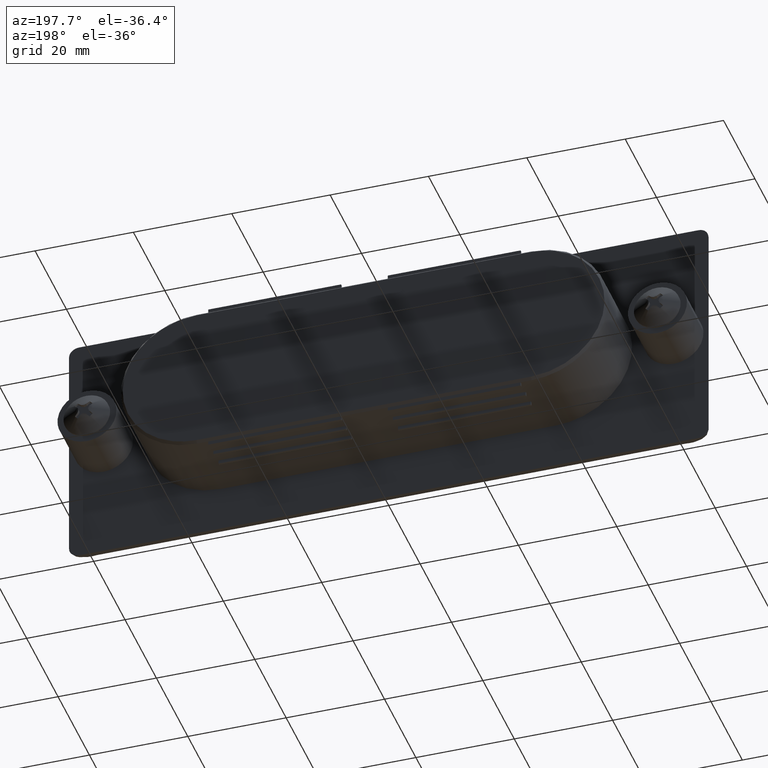
[diagram: clean part render]
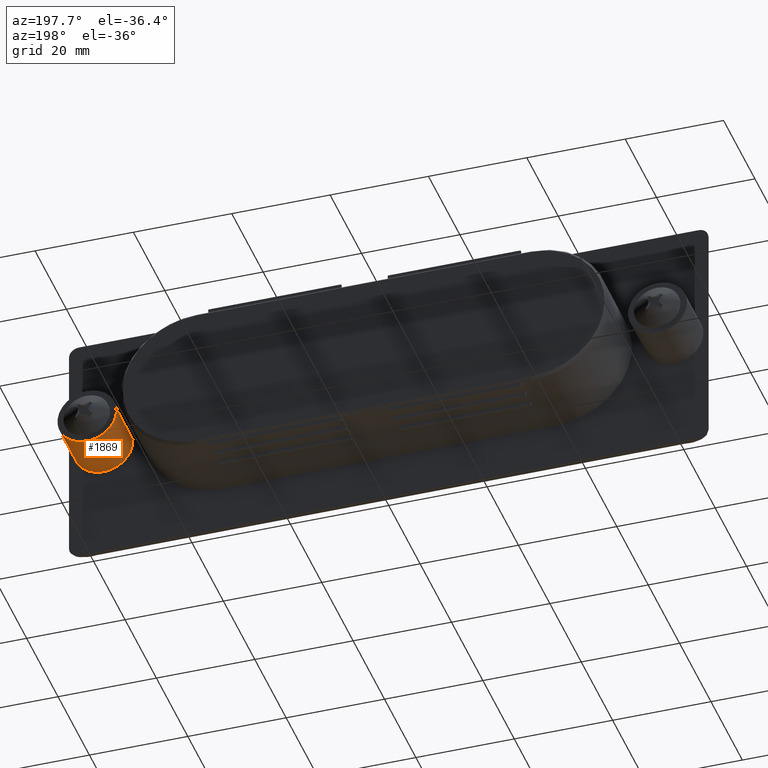
[diagram: same view with one face highlighted and labeled with its STEP entity id]
A machine part, auxiliary view. The second image highlights one B-rep face of the part: STEP entity #1869.
In plain terms, the highlighted face is a freeform B-spline surface patch.
Its self-contained STEP definition (entity closure, byte-faithful):
#1706=CARTESIAN_POINT('',(63.958057158140491,43.728926000000001,-0.708205408290503));
#1707=VERTEX_POINT('',#1706);
#1725=CARTESIAN_POINT('',(52.011191209492047,43.728926000000001,0.366291237590615));
#1726=VERTEX_POINT('',#1725);
#1740=CARTESIAN_POINT('',(52.011191209492040,33.228926000000001,0.366291237590613));
#1741=VERTEX_POINT('',#1740);
#1742=CARTESIAN_POINT('',(52.011191209492047,43.728926000000001,0.366291237590615));
#1743=CARTESIAN_POINT('',(52.011191209492040,33.228926000000001,0.366291237590613));
#1744=QUASI_UNIFORM_CURVE('',1,(#1742,#1743),.UNSPECIFIED.,.F.,.U.);
#1745=EDGE_CURVE('',#1726,#1741,#1744,.T.);
#1762=CARTESIAN_POINT('',(63.958057158140491,33.228926000000001,-0.708205408290503));
#1763=VERTEX_POINT('',#1762);
#1779=CARTESIAN_POINT('',(63.958057158140491,43.728926000000001,-0.708205408290503));
#1780=CARTESIAN_POINT('',(63.958057158140491,33.228926000000001,-0.708205408290503));
#1781=QUASI_UNIFORM_CURVE('',1,(#1779,#1780),.UNSPECIFIED.,.F.,.U.);
#1782=EDGE_CURVE('',#1707,#1763,#1781,.T.);
#1787=CARTESIAN_POINT('',(52.011191209468713,43.991426000000011,0.366291237209150));
#1788=CARTESIAN_POINT('',(51.644899972259566,43.991426000000011,-5.622517553322139));
#1789=CARTESIAN_POINT('',(57.633708762790853,43.991426000000011,-5.988808790531287));
#1790=CARTESIAN_POINT('',(63.289260945037086,43.991426000000004,-6.334717180395258));
#1791=CARTESIAN_POINT('',(63.958057158182086,43.991426000000018,-0.708205407940559));
#1792=CARTESIAN_POINT('',(52.011191209468713,32.959863499999997,0.366291237209150));
#1793=CARTESIAN_POINT('',(51.644899972259566,32.959863499999990,-5.622517553322139));
#1794=CARTESIAN_POINT('',(57.633708762790853,32.959863499999997,-5.988808790531287));
#1795=CARTESIAN_POINT('',(63.289260945037086,32.959863500000004,-6.334717180395258));
#1796=CARTESIAN_POINT('',(63.958057158182086,32.959863500000004,-0.708205407940559));
#1804=(BOUNDED_SURFACE()B_SPLINE_SURFACE(2,1,((#1787,#1792),(#1788,#1793),(#1789,#1794),(#1790,#1795),(#1791,#1796)),.UNSPECIFIED.,.F.,.F.,.U.)B_SPLINE_SURFACE_WITH_KNOTS((3,2,3),(2,2),(0.0,9.941125496954415,19.484605974030650),(0.0,11.031562500000019),.UNSPECIFIED.)GEOMETRIC_REPRESENTATION_ITEM()RATIONAL_B_SPLINE_SURFACE(((1.0,1.0),(0.707106781186548,0.707106781186548),(1.0,1.0),(0.718822509939086,0.718822509939086),(0.977505800795127,0.977505800795127)))REPRESENTATION_ITEM('')SURFACE());
#1805=CARTESIAN_POINT('',(58.0,43.728926000000001,-6.000000000000088));
#1806=VERTEX_POINT('',#1805);
#1807=CARTESIAN_POINT('',(58.0,43.728926000000001,-6.000000000000088));
#1808=CARTESIAN_POINT('',(63.329047155077873,43.728926000000016,-6.000000000000088));
#1809=CARTESIAN_POINT('',(63.958057158140491,43.728926000000008,-0.708205408290503));
#1817=(BOUNDED_CURVE()B_SPLINE_CURVE(2,(#1807,#1808,#1809),.UNSPECIFIED.,.F.,.U.)B_SPLINE_CURVE_WITH_KNOTS((3,3),(0.0,0.229562473495791),.UNSPECIFIED.)CURVE()GEOMETRIC_REPRESENTATION_ITEM()RATIONAL_B_SPLINE_CURVE((1.0,0.731050832876159,0.956026754148974))REPRESENTATION_ITEM(''));
#1818=EDGE_CURVE('',#1806,#1707,#1817,.T.);
#1819=ORIENTED_EDGE('',*,*,#1818,.T.);
#1820=ORIENTED_EDGE('',*,*,#1782,.T.);
#1821=CARTESIAN_POINT('',(58.0,33.228926000000001,-6.000000000000088));
#1822=VERTEX_POINT('',#1821);
#1823=CARTESIAN_POINT('',(58.0,33.228926000000001,-6.000000000000088));
#1824=CARTESIAN_POINT('',(63.329047155077873,33.228926000000016,-6.000000000000088));
#1825=CARTESIAN_POINT('',(63.958057158140491,33.228926000000008,-0.708205408290503));
#1833=(BOUNDED_CURVE()B_SPLINE_CURVE(2,(#1823,#1824,#1825),.UNSPECIFIED.,.F.,.U.)B_SPLINE_CURVE_WITH_KNOTS((3,3),(0.0,0.229562473495791),.UNSPECIFIED.)CURVE()GEOMETRIC_REPRESENTATION_ITEM()RATIONAL_B_SPLINE_CURVE((1.0,0.731050832876159,0.956026754148974))REPRESENTATION_ITEM(''));
#1834=EDGE_CURVE('',#1822,#1763,#1833,.T.);
#1835=ORIENTED_EDGE('',*,*,#1834,.F.);
#1836=CARTESIAN_POINT('',(52.011191209492040,33.228926000000008,0.366291237590613));
#1837=CARTESIAN_POINT('',(51.999999999999922,33.228926000000001,0.183316580174072));
#1838=CARTESIAN_POINT('',(51.999999999999922,33.228926000000001,3.014303E-015));
#1839=CARTESIAN_POINT('',(51.999999999999915,33.228926000000001,-6.000000000000088));
#1840=CARTESIAN_POINT('',(58.0,33.228926000000001,-6.000000000000088));
#1848=(BOUNDED_CURVE()B_SPLINE_CURVE(2,(#1836,#1837,#1838,#1839,#1840),.UNSPECIFIED.,.F.,.U.)B_SPLINE_CURVE_WITH_KNOTS((3,2,3),(0.739332962219987,0.750000000000000,1.0),.UNSPECIFIED.)CURVE()GEOMETRIC_REPRESENTATION_ITEM()RATIONAL_B_SPLINE_CURVE((0.976072041626092,0.987502787877629,1.0,0.707106781186548,1.0))REPRESENTATION_ITEM(''));
#1849=EDGE_CURVE('',#1741,#1822,#1848,.T.);
#1850=ORIENTED_EDGE('',*,*,#1849,.F.);
#1851=ORIENTED_EDGE('',*,*,#1745,.F.);
#1852=CARTESIAN_POINT('',(52.011191209492047,43.728926000000001,0.366291237590615));
#1853=CARTESIAN_POINT('',(51.999999999999908,43.728926000000001,0.183316580174073));
#1854=CARTESIAN_POINT('',(51.999999999999922,43.728926000000001,3.014303E-015));
#1855=CARTESIAN_POINT('',(51.999999999999915,43.728925999999994,-6.000000000000088));
#1856=CARTESIAN_POINT('',(58.0,43.728926000000001,-6.000000000000088));
#1864=(BOUNDED_CURVE()B_SPLINE_CURVE(2,(#1852,#1853,#1854,#1855,#1856),.UNSPECIFIED.,.F.,.U.)B_SPLINE_CURVE_WITH_KNOTS((3,2,3),(0.739332962219987,0.750000000000000,1.0),.UNSPECIFIED.)CURVE()GEOMETRIC_REPRESENTATION_ITEM()RATIONAL_B_SPLINE_CURVE((0.976072041626092,0.987502787877629,1.0,0.707106781186548,1.0))REPRESENTATION_ITEM(''));
#1865=EDGE_CURVE('',#1726,#1806,#1864,.T.);
#1866=ORIENTED_EDGE('',*,*,#1865,.T.);
#1867=EDGE_LOOP('',(#1819,#1820,#1835,#1850,#1851,#1866));
#1868=FACE_OUTER_BOUND('',#1867,.T.);
#1869=ADVANCED_FACE('',(#1868),#1804,.T.);